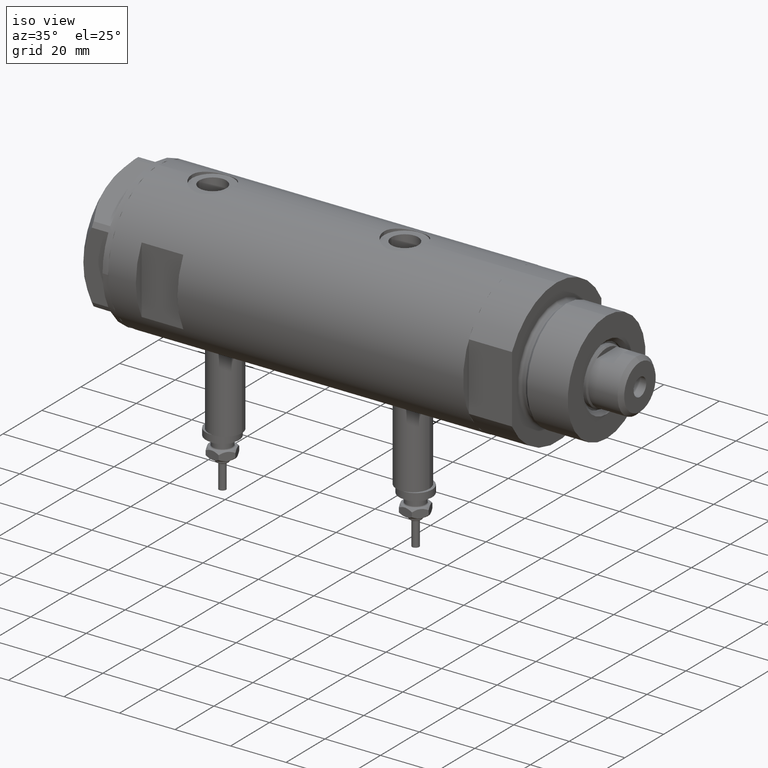
[diagram: clean part render]
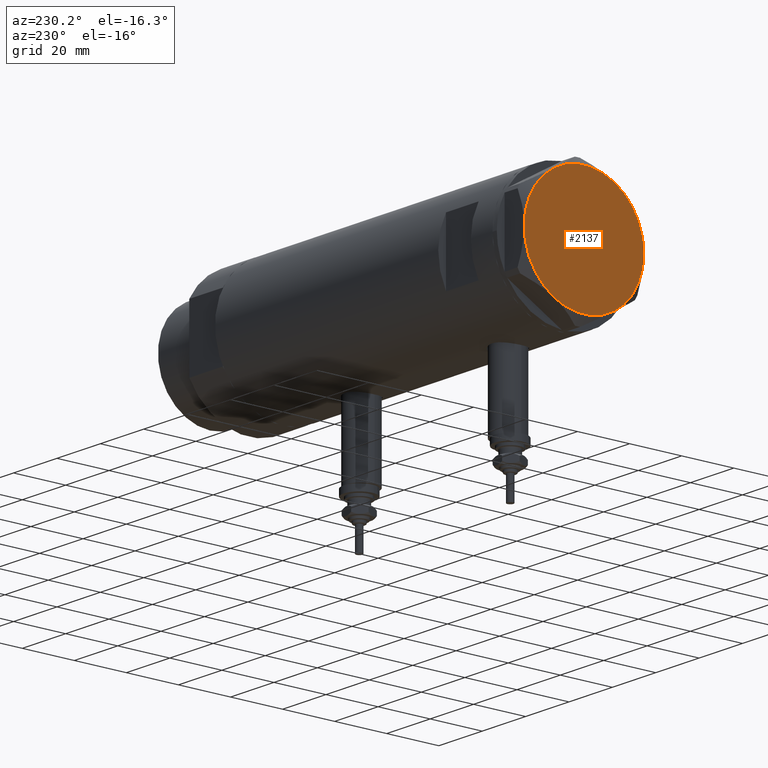
[diagram: tour spotlight — one face highlighted and labeled with its STEP entity id]
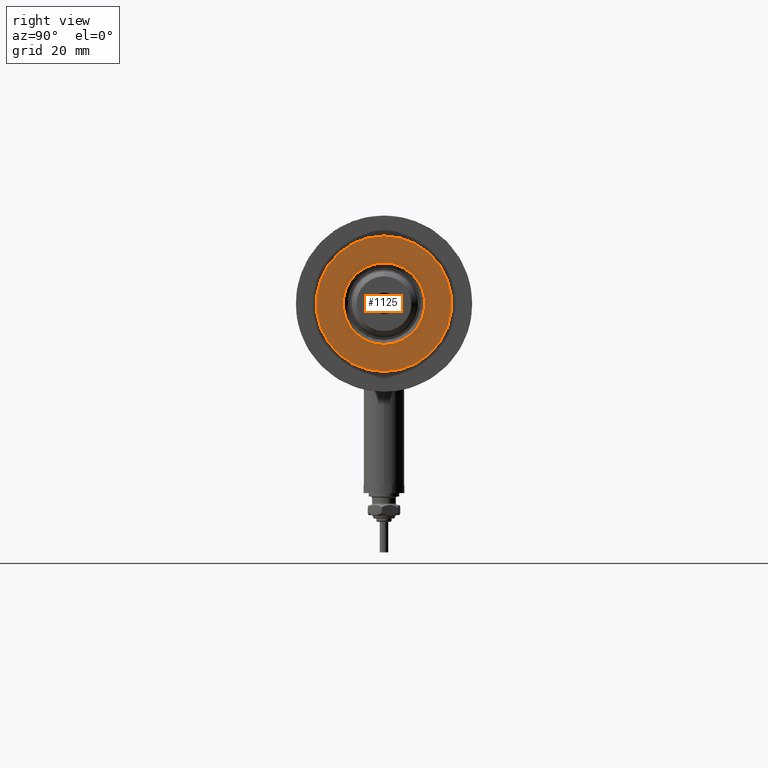
[diagram: tour spotlight — one face highlighted and labeled with its STEP entity id]
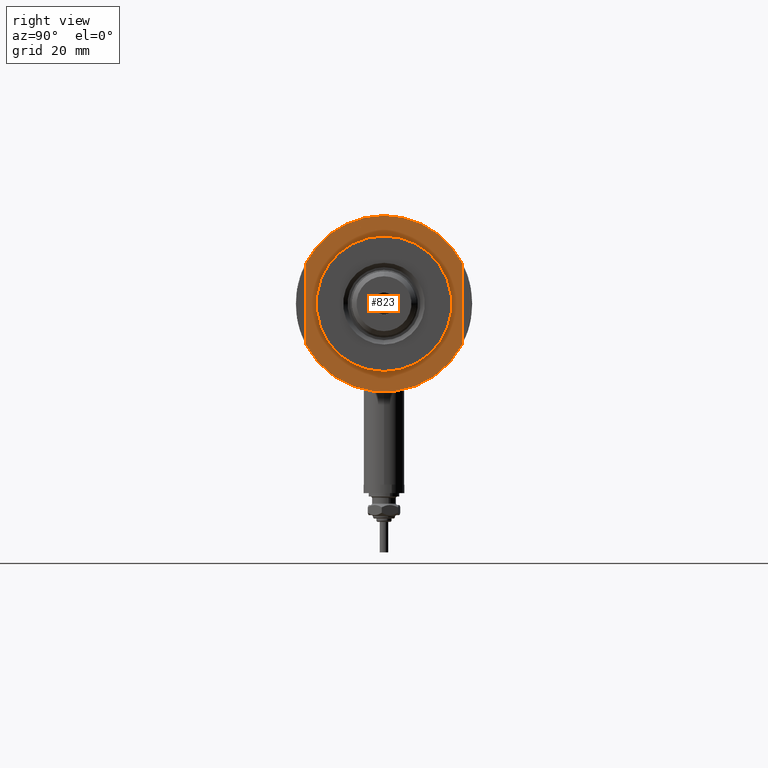
[diagram: tour spotlight — one face highlighted and labeled with its STEP entity id]
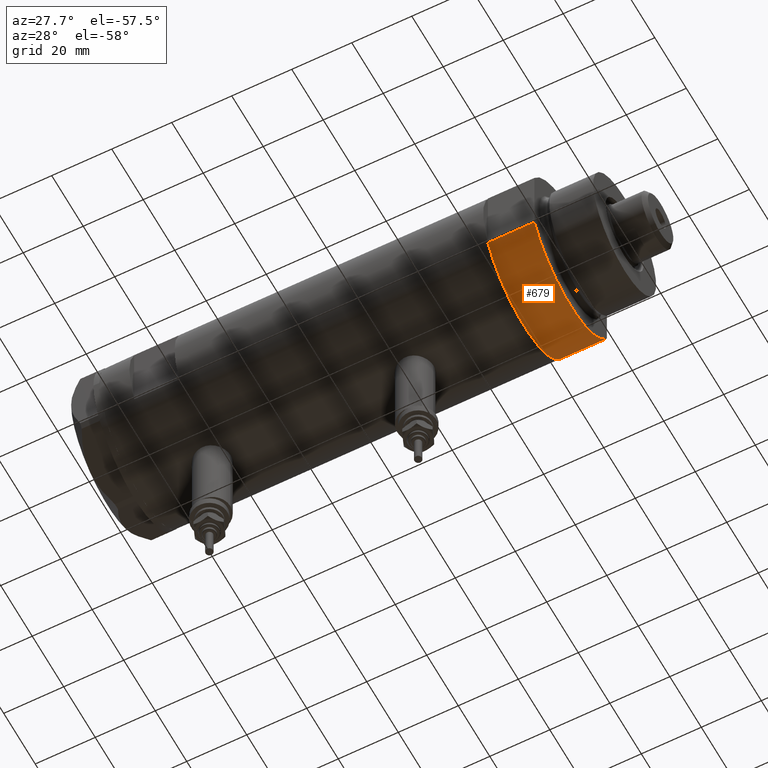
[diagram: tour spotlight — one face highlighted and labeled with its STEP entity id]
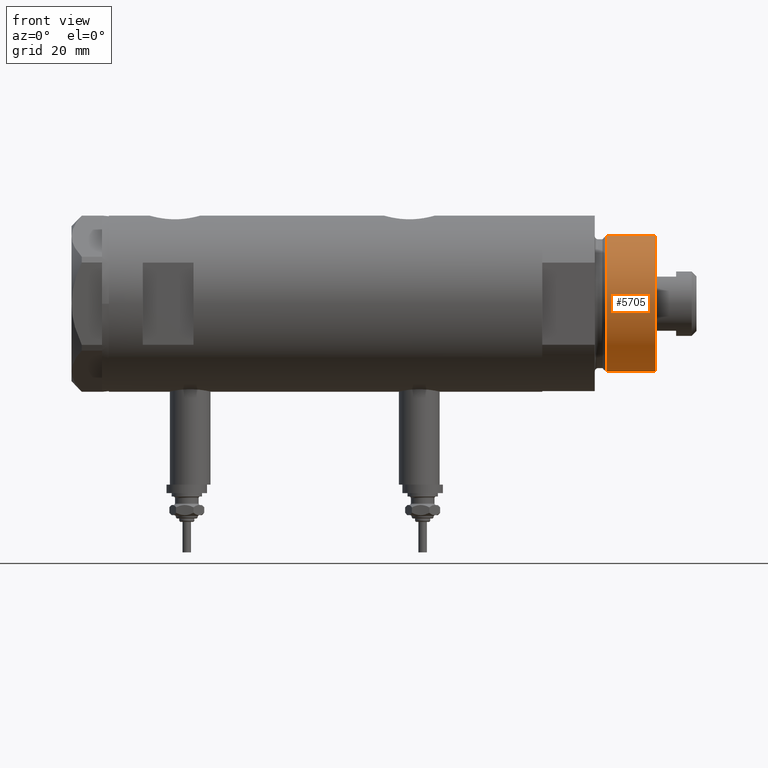
[diagram: tour spotlight — one face highlighted and labeled with its STEP entity id]
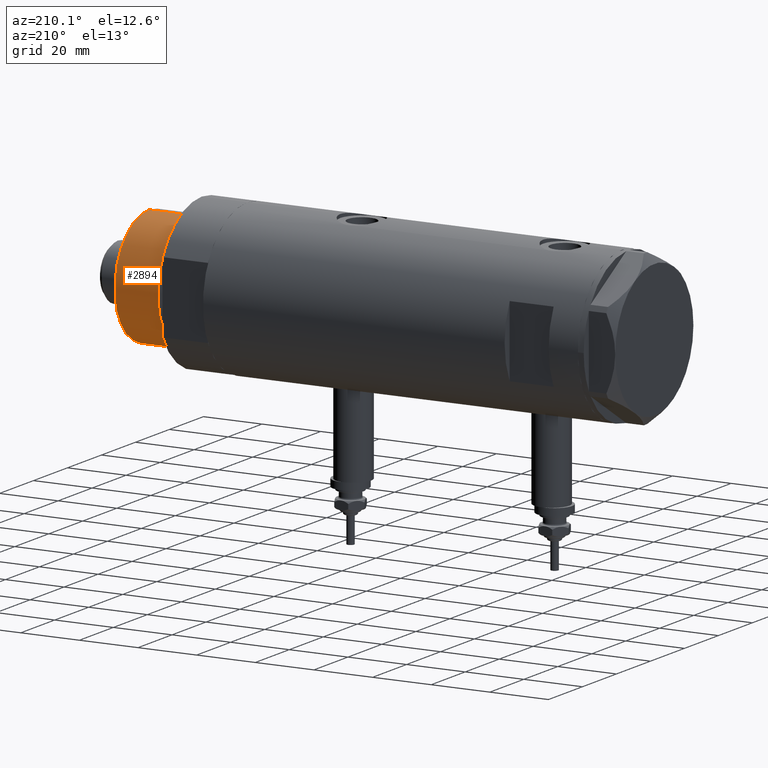
[diagram: tour spotlight — one face highlighted and labeled with its STEP entity id]
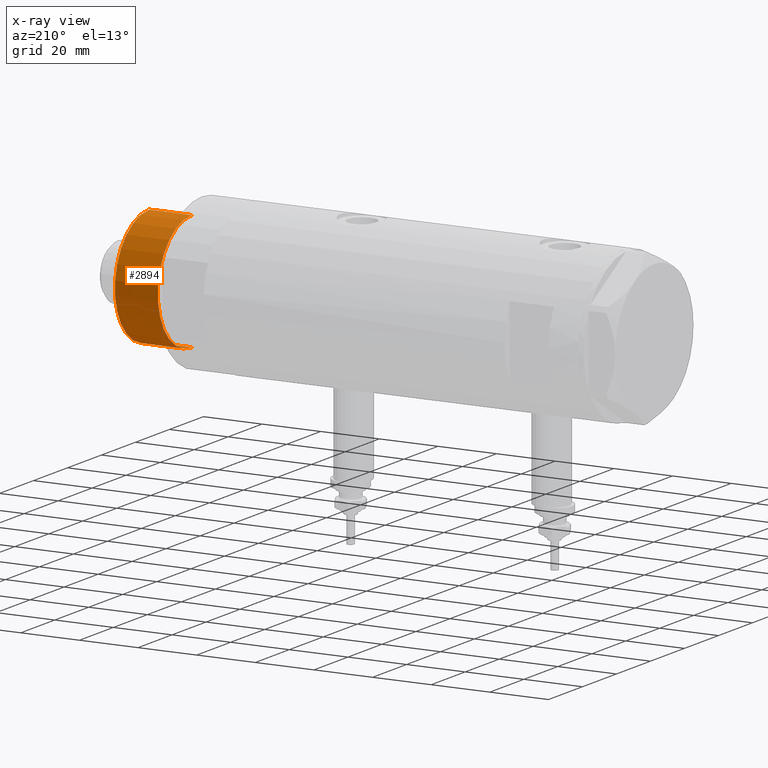
[diagram: x-ray of the same camera — body ghosted, this tour face saturated]
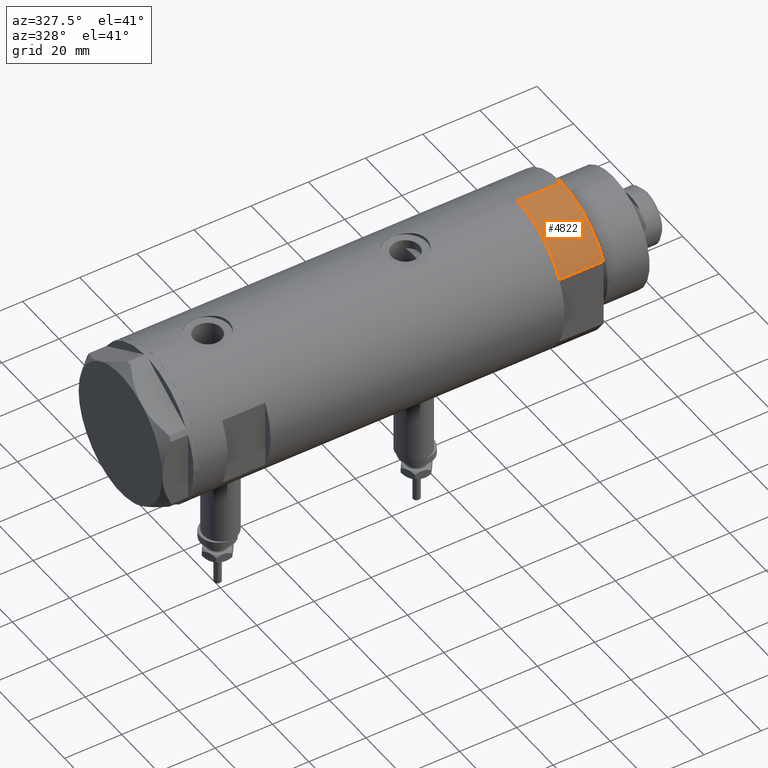
[diagram: tour spotlight — one face highlighted and labeled with its STEP entity id]
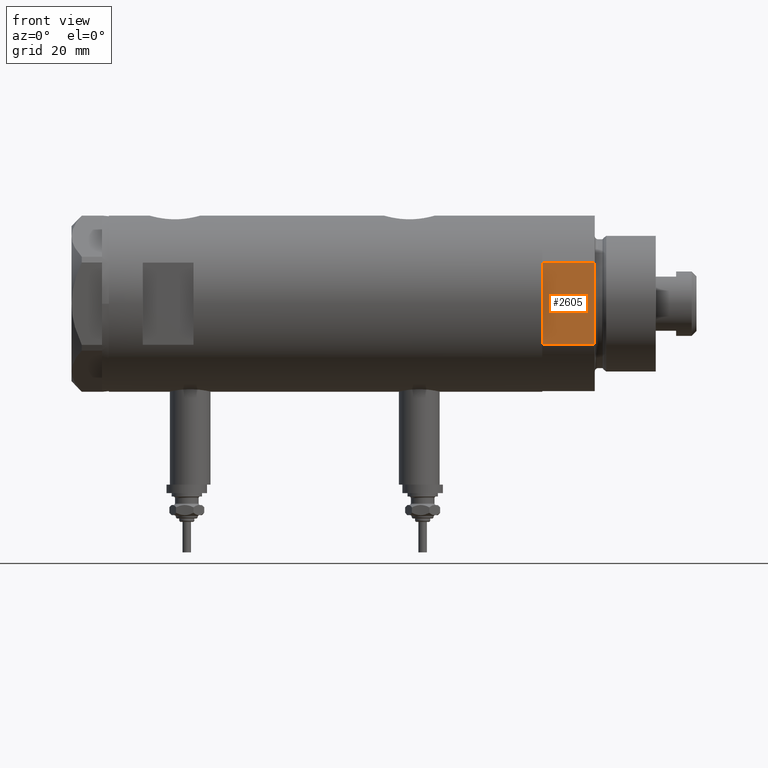
[diagram: tour spotlight — one face highlighted and labeled with its STEP entity id]
A machine part: a face-by-face anatomy tour. The part has 226 B-rep faces; the first image is the clean iso view, then the 8 largest visible faces are spotlighted one at a time (largest first), each with its STEP entity span.

Face 1 — auxiliary view, entity #2137. In plain terms, the highlighted planar face has unit normal (-1, -0, 0).
Definition (entity closure, byte-faithful):
#85 = VERTEX_POINT ( 'NONE', #5427 ) ;
#307 = CARTESIAN_POINT ( 'NONE',  ( -23.00000000000004619, -8.112498833180673323E-14, 9.000000000000000000 ) ) ;
#335 = VERTEX_POINT ( 'NONE', #2338 ) ;
#383 = DIRECTION ( 'NONE',  ( 0.000000000000000000, 0.000000000000000000, 1.000000000000000000 ) ) ;
#514 = AXIS2_PLACEMENT_3D ( 'NONE', #3091, #2160, #4688 ) ;
#776 = AXIS2_PLACEMENT_3D ( 'NONE', #1518, #4438, #2988 ) ;
#793 = CARTESIAN_POINT ( 'NONE',  ( 0.000000000000000000, 0.000000000000000000, 9.000000000000000000 ) ) ;
#925 = CIRCLE ( 'NONE', #1239, 23.00000000000004619 ) ;
#1014 = ORIENTED_EDGE ( 'NONE', *, *, #5451, .T. ) ;
#1029 = AXIS2_PLACEMENT_3D ( 'NONE', #793, #1725, #2741 ) ;
#1116 = VERTEX_POINT ( 'NONE', #2904 ) ;
#1143 = ORIENTED_EDGE ( 'NONE', *, *, #3598, .T. ) ;
#1196 = DIRECTION ( 'NONE',  ( 0.000000000000000000, 0.000000000000000000, 1.000000000000000000 ) ) ;
#1211 = DIRECTION ( 'NONE',  ( 1.000000000000000000, 0.000000000000000000, 0.000000000000000000 ) ) ;
#1239 = AXIS2_PLACEMENT_3D ( 'NONE', #2538, #1196, #5545 ) ;
#1319 = ORIENTED_EDGE ( 'NONE', *, *, #1861, .T. ) ;
#1368 = CARTESIAN_POINT ( 'NONE',  ( 0.000000000000000000, 0.000000000000000000, 9.000000000000000000 ) ) ;
#1518 = CARTESIAN_POINT ( 'NONE',  ( 0.000000000000000000, 0.000000000000000000, 9.000000000000000000 ) ) ;
#1539 = CIRCLE ( 'NONE', #514, 23.00000000000004619 ) ;
#1632 = CIRCLE ( 'NONE', #1029, 23.00000000000004619 ) ;
#1725 = DIRECTION ( 'NONE',  ( 0.000000000000000000, 0.000000000000000000, 1.000000000000000000 ) ) ;
#1861 = EDGE_CURVE ( 'NONE', #5751, #6019, #3748, .T. ) ;
#1990 = FACE_OUTER_BOUND ( 'NONE', #3487, .T. ) ;
#1998 = AXIS2_PLACEMENT_3D ( 'NONE', #3223, #3677, #1211 ) ;
#2137 = ADVANCED_FACE ( 'NONE', ( #1990 ), #5350, .T. ) ;
#2160 = DIRECTION ( 'NONE',  ( 0.000000000000000000, 0.000000000000000000, 1.000000000000000000 ) ) ;
#2220 = CARTESIAN_POINT ( 'NONE',  ( -11.49999999999990585, -19.91858428704219364, 9.000000000000000000 ) ) ;
#2338 = CARTESIAN_POINT ( 'NONE',  ( 22.99999999999995026, 2.373657066004705010E-13, 9.000000000000000000 ) ) ;
#2538 = CARTESIAN_POINT ( 'NONE',  ( 0.000000000000000000, 0.000000000000000000, 9.000000000000000000 ) ) ;
#2741 = DIRECTION ( 'NONE',  ( 1.000000000000000000, 0.000000000000000000, 0.000000000000000000 ) ) ;
#2774 = CARTESIAN_POINT ( 'NONE',  ( 0.000000000000000000, 0.000000000000000000, 9.000000000000000000 ) ) ;
#2836 = EDGE_CURVE ( 'NONE', #1116, #85, #6257, .T. ) ;
#2904 = CARTESIAN_POINT ( 'NONE',  ( 11.49999999999990408, 19.91858428704219364, 9.000000000000000000 ) ) ;
#2988 = DIRECTION ( 'NONE',  ( 1.000000000000000000, 0.000000000000000000, -0.000000000000000000 ) ) ;
#3045 = VERTEX_POINT ( 'NONE', #307 ) ;
#3091 = CARTESIAN_POINT ( 'NONE',  ( 0.000000000000000000, 0.000000000000000000, 9.000000000000000000 ) ) ;
#3103 = ORIENTED_EDGE ( 'NONE', *, *, #4237, .T. ) ;
#3223 = CARTESIAN_POINT ( 'NONE',  ( 0.000000000000000000, 0.000000000000000000, 9.000000000000000000 ) ) ;
#3487 = EDGE_LOOP ( 'NONE', ( #3103, #1014, #4005, #1143, #3893, #1319 ) ) ;
#3507 = AXIS2_PLACEMENT_3D ( 'NONE', #1368, #6293, #5329 ) ;
#3598 = EDGE_CURVE ( 'NONE', #85, #3045, #1539, .T. ) ;
#3677 = DIRECTION ( 'NONE',  ( 0.000000000000000000, 0.000000000000000000, 1.000000000000000000 ) ) ;
#3702 = CARTESIAN_POINT ( 'NONE',  ( 11.50000000000018296, -19.91858428704203732, 9.000000000000000000 ) ) ;
#3748 = CIRCLE ( 'NONE', #1998, 23.00000000000004619 ) ;
#3893 = ORIENTED_EDGE ( 'NONE', *, *, #4390, .T. ) ;
#4005 = ORIENTED_EDGE ( 'NONE', *, *, #2836, .T. ) ;
#4110 = CIRCLE ( 'NONE', #5424, 23.00000000000004619 ) ;
#4237 = EDGE_CURVE ( 'NONE', #6019, #335, #1632, .T. ) ;
#4390 = EDGE_CURVE ( 'NONE', #3045, #5751, #4110, .T. ) ;
#4438 = DIRECTION ( 'NONE',  ( 0.000000000000000000, 0.000000000000000000, 1.000000000000000000 ) ) ;
#4688 = DIRECTION ( 'NONE',  ( 1.000000000000000000, 0.000000000000000000, 0.000000000000000000 ) ) ;
#5275 = DIRECTION ( 'NONE',  ( 1.000000000000000000, 0.000000000000000000, 0.000000000000000000 ) ) ;
#5329 = DIRECTION ( 'NONE',  ( 1.000000000000000000, 0.000000000000000000, 0.000000000000000000 ) ) ;
#5350 = PLANE ( 'NONE',  #776 ) ;
#5424 = AXIS2_PLACEMENT_3D ( 'NONE', #2774, #383, #5275 ) ;
#5427 = CARTESIAN_POINT ( 'NONE',  ( -11.50000000000004441, 19.91858428704211548, 9.000000000000000000 ) ) ;
#5451 = EDGE_CURVE ( 'NONE', #335, #1116, #925, .T. ) ;
#5545 = DIRECTION ( 'NONE',  ( 1.000000000000000000, 0.000000000000000000, 0.000000000000000000 ) ) ;
#5751 = VERTEX_POINT ( 'NONE', #2220 ) ;
#6019 = VERTEX_POINT ( 'NONE', #3702 ) ;
#6257 = CIRCLE ( 'NONE', #3507, 23.00000000000004619 ) ;
#6293 = DIRECTION ( 'NONE',  ( 0.000000000000000000, 0.000000000000000000, 1.000000000000000000 ) ) ;

Face 2 — right view, entity #1125. In plain terms, the highlighted planar face has unit normal (1, 0, -0).
Definition (entity closure, byte-faithful):
#388 = DIRECTION ( 'NONE',  ( 1.000000000000000000, 0.000000000000000000, 0.000000000000000000 ) ) ;
#486 = ORIENTED_EDGE ( 'NONE', *, *, #4769, .T. ) ;
#488 = VERTEX_POINT ( 'NONE', #4971 ) ;
#593 = CARTESIAN_POINT ( 'NONE',  ( 0.000000000000000000, 0.000000000000000000, 33.50000000000000000 ) ) ;
#815 = AXIS2_PLACEMENT_3D ( 'NONE', #5325, #856, #5742 ) ;
#856 = DIRECTION ( 'NONE',  ( 0.000000000000000000, 0.000000000000000000, 1.000000000000000000 ) ) ;
#959 = DIRECTION ( 'NONE',  ( -0.000000000000000000, -0.000000000000000000, -1.000000000000000000 ) ) ;
#1076 = AXIS2_PLACEMENT_3D ( 'NONE', #3363, #5340, #5307 ) ;
#1125 = ADVANCED_FACE ( 'NONE', ( #1408, #3398 ), #1914, .T. ) ;
#1204 = EDGE_CURVE ( 'NONE', #3248, #488, #1484, .T. ) ;
#1378 = AXIS2_PLACEMENT_3D ( 'NONE', #1440, #959, #3333 ) ;
#1408 = FACE_BOUND ( 'NONE', #3915, .T. ) ;
#1425 = CIRCLE ( 'NONE', #815, 19.99999999999999645 ) ;
#1440 = CARTESIAN_POINT ( 'NONE',  ( 0.000000000000000000, 0.000000000000000000, 33.50000000000000000 ) ) ;
#1484 = CIRCLE ( 'NONE', #1378, 12.05000000000000426 ) ;
#1914 = PLANE ( 'NONE',  #1076 ) ;
#2052 = CIRCLE ( 'NONE', #2460, 12.05000000000000426 ) ;
#2460 = AXIS2_PLACEMENT_3D ( 'NONE', #6212, #3306, #388 ) ;
#2507 = DIRECTION ( 'NONE',  ( 1.000000000000000000, 0.000000000000000000, 0.000000000000000000 ) ) ;
#3248 = VERTEX_POINT ( 'NONE', #3376 ) ;
#3306 = DIRECTION ( 'NONE',  ( -0.000000000000000000, -0.000000000000000000, -1.000000000000000000 ) ) ;
#3333 = DIRECTION ( 'NONE',  ( 1.000000000000000000, 0.000000000000000000, 0.000000000000000000 ) ) ;
#3363 = CARTESIAN_POINT ( 'NONE',  ( 0.000000000000000000, 0.000000000000000000, 33.50000000000000000 ) ) ;
#3376 = CARTESIAN_POINT ( 'NONE',  ( 12.05000000000000426, 0.000000000000000000, 33.50000000000000000 ) ) ;
#3398 = FACE_OUTER_BOUND ( 'NONE', #5902, .T. ) ;
#3441 = DIRECTION ( 'NONE',  ( 0.000000000000000000, 0.000000000000000000, 1.000000000000000000 ) ) ;
#3570 = CARTESIAN_POINT ( 'NONE',  ( -19.99999999999999645, 0.000000000000000000, 33.50000000000000000 ) ) ;
#3915 = EDGE_LOOP ( 'NONE', ( #5546, #6095 ) ) ;
#3931 = VERTEX_POINT ( 'NONE', #3570 ) ;
#4769 = EDGE_CURVE ( 'NONE', #3931, #5992, #1425, .T. ) ;
#4971 = CARTESIAN_POINT ( 'NONE',  ( -12.05000000000000426, 1.475699392972560823E-15, 33.50000000000000000 ) ) ;
#5029 = AXIS2_PLACEMENT_3D ( 'NONE', #593, #3441, #2507 ) ;
#5307 = DIRECTION ( 'NONE',  ( 1.000000000000000000, 0.000000000000000000, -0.000000000000000000 ) ) ;
#5325 = CARTESIAN_POINT ( 'NONE',  ( 0.000000000000000000, 0.000000000000000000, 33.50000000000000000 ) ) ;
#5340 = DIRECTION ( 'NONE',  ( 0.000000000000000000, 0.000000000000000000, 1.000000000000000000 ) ) ;
#5429 = CIRCLE ( 'NONE', #5029, 19.99999999999999645 ) ;
#5546 = ORIENTED_EDGE ( 'NONE', *, *, #1204, .T. ) ;
#5613 = EDGE_CURVE ( 'NONE', #488, #3248, #2052, .T. ) ;
#5742 = DIRECTION ( 'NONE',  ( 1.000000000000000000, 0.000000000000000000, 0.000000000000000000 ) ) ;
#5902 = EDGE_LOOP ( 'NONE', ( #486, #6007 ) ) ;
#5992 = VERTEX_POINT ( 'NONE', #6123 ) ;
#6007 = ORIENTED_EDGE ( 'NONE', *, *, #6266, .T. ) ;
#6095 = ORIENTED_EDGE ( 'NONE', *, *, #5613, .T. ) ;
#6123 = CARTESIAN_POINT ( 'NONE',  ( 19.99999999999999645, 2.449293598294706119E-15, 33.50000000000000000 ) ) ;
#6212 = CARTESIAN_POINT ( 'NONE',  ( 0.000000000000000000, 0.000000000000000000, 33.50000000000000000 ) ) ;
#6266 = EDGE_CURVE ( 'NONE', #5992, #3931, #5429, .T. ) ;

Face 3 — right view, entity #823. In plain terms, the highlighted planar face has unit normal (1, 0, -0).
Definition (entity closure, byte-faithful):
#74 = VERTEX_POINT ( 'NONE', #2419 ) ;
#98 = DIRECTION ( 'NONE',  ( -1.000000000000000000, -0.000000000000000000, -0.000000000000000000 ) ) ;
#135 = DIRECTION ( 'NONE',  ( 0.000000000000000000, 0.000000000000000000, 1.000000000000000000 ) ) ;
#209 = CARTESIAN_POINT ( 'NONE',  ( 0.000000000000000000, 0.000000000000000000, 15.50000000000000000 ) ) ;
#556 = ORIENTED_EDGE ( 'NONE', *, *, #5918, .F. ) ;
#629 = AXIS2_PLACEMENT_3D ( 'NONE', #209, #3242, #2339 ) ;
#631 = VERTEX_POINT ( 'NONE', #4682 ) ;
#823 = ADVANCED_FACE ( 'NONE', ( #1792, #2812 ), #2336, .T. ) ;
#847 = EDGE_LOOP ( 'NONE', ( #4532, #4432 ) ) ;
#946 = DIRECTION ( 'NONE',  ( 0.000000000000000000, 0.000000000000000000, 1.000000000000000000 ) ) ;
#1071 = ORIENTED_EDGE ( 'NONE', *, *, #3329, .T. ) ;
#1089 = CARTESIAN_POINT ( 'NONE',  ( 0.000000000000000000, 0.000000000000000000, 15.50000000000000000 ) ) ;
#1094 = CARTESIAN_POINT ( 'NONE',  ( -12.12435565298215145, -22.99999999999999645, 15.50000000000000000 ) ) ;
#1098 = VERTEX_POINT ( 'NONE', #3427 ) ;
#1312 = EDGE_CURVE ( 'NONE', #631, #1098, #4968, .T. ) ;
#1327 = CIRCLE ( 'NONE', #1636, 26.00000000000000355 ) ;
#1344 = VECTOR ( 'NONE', #4479, 1000.000000000000000 ) ;
#1636 = AXIS2_PLACEMENT_3D ( 'NONE', #2350, #946, #5292 ) ;
#1746 = CIRCLE ( 'NONE', #629, 26.00000000000000355 ) ;
#1785 = EDGE_CURVE ( 'NONE', #2131, #4190, #5363, .T. ) ;
#1792 = FACE_BOUND ( 'NONE', #847, .T. ) ;
#1996 = ORIENTED_EDGE ( 'NONE', *, *, #3616, .T. ) ;
#2059 = CARTESIAN_POINT ( 'NONE',  ( -20.00000000000000000, 2.449293598294706513E-15, 15.50000000000000000 ) ) ;
#2131 = VERTEX_POINT ( 'NONE', #2059 ) ;
#2164 = ORIENTED_EDGE ( 'NONE', *, *, #2532, .T. ) ;
#2203 = VECTOR ( 'NONE', #98, 1000.000000000000000 ) ;
#2273 = CIRCLE ( 'NONE', #4019, 26.00000000000000355 ) ;
#2305 = AXIS2_PLACEMENT_3D ( 'NONE', #5978, #6009, #4580 ) ;
#2336 = PLANE ( 'NONE',  #4467 ) ;
#2339 = DIRECTION ( 'NONE',  ( 1.000000000000000000, 0.000000000000000000, 0.000000000000000000 ) ) ;
#2345 = CIRCLE ( 'NONE', #6244, 20.00000000000000000 ) ;
#2350 = CARTESIAN_POINT ( 'NONE',  ( 0.000000000000000000, 0.000000000000000000, 15.50000000000000000 ) ) ;
#2378 = ORIENTED_EDGE ( 'NONE', *, *, #1312, .F. ) ;
#2419 = CARTESIAN_POINT ( 'NONE',  ( 12.12435565298214790, 23.00000000000000355, 15.50000000000000000 ) ) ;
#2532 = EDGE_CURVE ( 'NONE', #2690, #4487, #2273, .T. ) ;
#2690 = VERTEX_POINT ( 'NONE', #6169 ) ;
#2805 = CARTESIAN_POINT ( 'NONE',  ( 0.000000000000000000, 0.000000000000000000, 15.50000000000000000 ) ) ;
#2812 = FACE_OUTER_BOUND ( 'NONE', #4904, .T. ) ;
#3242 = DIRECTION ( 'NONE',  ( 0.000000000000000000, 0.000000000000000000, 1.000000000000000000 ) ) ;
#3329 = EDGE_CURVE ( 'NONE', #631, #74, #1327, .T. ) ;
#3427 = CARTESIAN_POINT ( 'NONE',  ( -12.12435565298215323, -22.99999999999999645, 15.50000000000000000 ) ) ;
#3552 = CARTESIAN_POINT ( 'NONE',  ( -12.12435565298215145, 23.00000000000000355, 15.50000000000000000 ) ) ;
#3616 = EDGE_CURVE ( 'NONE', #4487, #1098, #1746, .T. ) ;
#3755 = DIRECTION ( 'NONE',  ( 0.000000000000000000, 0.000000000000000000, 1.000000000000000000 ) ) ;
#3814 = CARTESIAN_POINT ( 'NONE',  ( 0.000000000000000000, 0.000000000000000000, 15.50000000000000000 ) ) ;
#3846 = DIRECTION ( 'NONE',  ( 1.000000000000000000, 0.000000000000000000, -0.000000000000000000 ) ) ;
#3974 = DIRECTION ( 'NONE',  ( 1.000000000000000000, 0.000000000000000000, 0.000000000000000000 ) ) ;
#4019 = AXIS2_PLACEMENT_3D ( 'NONE', #1089, #135, #3974 ) ;
#4106 = CARTESIAN_POINT ( 'NONE',  ( 20.00000000000000000, 0.000000000000000000, 15.50000000000000000 ) ) ;
#4190 = VERTEX_POINT ( 'NONE', #4106 ) ;
#4329 = EDGE_CURVE ( 'NONE', #4190, #2131, #2345, .T. ) ;
#4432 = ORIENTED_EDGE ( 'NONE', *, *, #1785, .T. ) ;
#4467 = AXIS2_PLACEMENT_3D ( 'NONE', #3814, #3755, #3846 ) ;
#4479 = DIRECTION ( 'NONE',  ( 1.000000000000000000, 0.000000000000000000, 0.000000000000000000 ) ) ;
#4487 = VERTEX_POINT ( 'NONE', #5393 ) ;
#4532 = ORIENTED_EDGE ( 'NONE', *, *, #4329, .T. ) ;
#4580 = DIRECTION ( 'NONE',  ( 1.000000000000000000, 0.000000000000000000, 0.000000000000000000 ) ) ;
#4682 = CARTESIAN_POINT ( 'NONE',  ( 12.12435565298215323, -22.99999999999999645, 15.50000000000000000 ) ) ;
#4738 = DIRECTION ( 'NONE',  ( 1.000000000000000000, 0.000000000000000000, 0.000000000000000000 ) ) ;
#4904 = EDGE_LOOP ( 'NONE', ( #2378, #1071, #556, #2164, #1996 ) ) ;
#4968 = LINE ( 'NONE', #1094, #2203 ) ;
#5292 = DIRECTION ( 'NONE',  ( 1.000000000000000000, 0.000000000000000000, 0.000000000000000000 ) ) ;
#5363 = CIRCLE ( 'NONE', #2305, 20.00000000000000000 ) ;
#5393 = CARTESIAN_POINT ( 'NONE',  ( -26.00000000000000355, 0.000000000000000000, 15.50000000000000000 ) ) ;
#5710 = DIRECTION ( 'NONE',  ( -0.000000000000000000, -0.000000000000000000, -1.000000000000000000 ) ) ;
#5918 = EDGE_CURVE ( 'NONE', #2690, #74, #6321, .T. ) ;
#5978 = CARTESIAN_POINT ( 'NONE',  ( 0.000000000000000000, 0.000000000000000000, 15.50000000000000000 ) ) ;
#6009 = DIRECTION ( 'NONE',  ( -0.000000000000000000, -0.000000000000000000, -1.000000000000000000 ) ) ;
#6169 = CARTESIAN_POINT ( 'NONE',  ( -12.12435565298214613, 23.00000000000000355, 15.50000000000000000 ) ) ;
#6244 = AXIS2_PLACEMENT_3D ( 'NONE', #2805, #5710, #4738 ) ;
#6321 = LINE ( 'NONE', #3552, #1344 ) ;

Face 4 — auxiliary view, entity #679. In plain terms, the highlighted cylindrical surface (partial cylindrical patch) has radius 26 mm, axis along (-1, -0, 0).
Definition (entity closure, byte-faithful):
#35 = CARTESIAN_POINT ( 'NONE',  ( 0.000000000000000000, 0.000000000000000000, 0.000000000000000000 ) ) ;
#69 = EDGE_CURVE ( 'NONE', #6188, #74, #5842, .T. ) ;
#74 = VERTEX_POINT ( 'NONE', #2419 ) ;
#392 = DIRECTION ( 'NONE',  ( -0.000000000000000000, -0.000000000000000000, 1.000000000000000000 ) ) ;
#511 = DIRECTION ( 'NONE',  ( 0.000000000000000000, 0.000000000000000000, 1.000000000000000000 ) ) ;
#596 = ORIENTED_EDGE ( 'NONE', *, *, #1106, .T. ) ;
#631 = VERTEX_POINT ( 'NONE', #4682 ) ;
#679 = ADVANCED_FACE ( 'NONE', ( #2718 ), #2185, .T. ) ;
#946 = DIRECTION ( 'NONE',  ( 0.000000000000000000, 0.000000000000000000, 1.000000000000000000 ) ) ;
#1106 = EDGE_CURVE ( 'NONE', #4886, #6188, #3839, .T. ) ;
#1327 = CIRCLE ( 'NONE', #1636, 26.00000000000000355 ) ;
#1636 = AXIS2_PLACEMENT_3D ( 'NONE', #2350, #946, #5292 ) ;
#1946 = DIRECTION ( 'NONE',  ( 1.000000000000000000, 0.000000000000000000, 0.000000000000000000 ) ) ;
#2086 = DIRECTION ( 'NONE',  ( -0.000000000000000000, -0.000000000000000000, -1.000000000000000000 ) ) ;
#2185 = CYLINDRICAL_SURFACE ( 'NONE', #5779, 26.00000000000000355 ) ;
#2350 = CARTESIAN_POINT ( 'NONE',  ( 0.000000000000000000, 0.000000000000000000, 15.50000000000000000 ) ) ;
#2419 = CARTESIAN_POINT ( 'NONE',  ( 12.12435565298214790, 23.00000000000000355, 15.50000000000000000 ) ) ;
#2718 = FACE_OUTER_BOUND ( 'NONE', #3526, .T. ) ;
#2730 = CARTESIAN_POINT ( 'NONE',  ( 12.12435565298214080, 23.00000000000000355, 0.000000000000000000 ) ) ;
#2915 = ORIENTED_EDGE ( 'NONE', *, *, #69, .T. ) ;
#3022 = ORIENTED_EDGE ( 'NONE', *, *, #3945, .F. ) ;
#3178 = VECTOR ( 'NONE', #392, 1000.000000000000000 ) ;
#3329 = EDGE_CURVE ( 'NONE', #631, #74, #1327, .T. ) ;
#3353 = CARTESIAN_POINT ( 'NONE',  ( 12.12435565298215323, 23.00000000000000355, 0.000000000000000000 ) ) ;
#3526 = EDGE_LOOP ( 'NONE', ( #5805, #3022, #596, #2915 ) ) ;
#3821 = LINE ( 'NONE', #6153, #3178 ) ;
#3839 = CIRCLE ( 'NONE', #5358, 26.00000000000000355 ) ;
#3945 = EDGE_CURVE ( 'NONE', #4886, #631, #3821, .T. ) ;
#3967 = DIRECTION ( 'NONE',  ( -0.000000000000000000, -0.000000000000000000, 1.000000000000000000 ) ) ;
#4079 = DIRECTION ( 'NONE',  ( -1.000000000000000000, 0.000000000000000000, 0.000000000000000000 ) ) ;
#4261 = VECTOR ( 'NONE', #3967, 1000.000000000000000 ) ;
#4682 = CARTESIAN_POINT ( 'NONE',  ( 12.12435565298215323, -22.99999999999999645, 15.50000000000000000 ) ) ;
#4886 = VERTEX_POINT ( 'NONE', #5770 ) ;
#5062 = CARTESIAN_POINT ( 'NONE',  ( 0.000000000000000000, 0.000000000000000000, 15.50000000000000000 ) ) ;
#5292 = DIRECTION ( 'NONE',  ( 1.000000000000000000, 0.000000000000000000, 0.000000000000000000 ) ) ;
#5358 = AXIS2_PLACEMENT_3D ( 'NONE', #35, #511, #1946 ) ;
#5770 = CARTESIAN_POINT ( 'NONE',  ( 12.12435565298215323, -22.99999999999999645, 0.000000000000000000 ) ) ;
#5779 = AXIS2_PLACEMENT_3D ( 'NONE', #5062, #2086, #4079 ) ;
#5805 = ORIENTED_EDGE ( 'NONE', *, *, #3329, .F. ) ;
#5842 = LINE ( 'NONE', #3353, #4261 ) ;
#6153 = CARTESIAN_POINT ( 'NONE',  ( 12.12435565298215323, -22.99999999999999645, 0.000000000000000000 ) ) ;
#6188 = VERTEX_POINT ( 'NONE', #2730 ) ;

Face 5 — front view, entity #5705. In plain terms, the highlighted cylindrical surface (partial cylindrical patch) has radius 20 mm, axis along (-1, -0, 0).
Definition (entity closure, byte-faithful):
#324 = VECTOR ( 'NONE', #4157, 1000.000000000000000 ) ;
#326 = ORIENTED_EDGE ( 'NONE', *, *, #4572, .T. ) ;
#478 = CARTESIAN_POINT ( 'NONE',  ( 19.99999999999999645, 2.449293598294706119E-15, 18.87384048104053846 ) ) ;
#630 = FACE_OUTER_BOUND ( 'NONE', #2612, .T. ) ;
#700 = ORIENTED_EDGE ( 'NONE', *, *, #4769, .F. ) ;
#815 = AXIS2_PLACEMENT_3D ( 'NONE', #5325, #856, #5742 ) ;
#837 = DIRECTION ( 'NONE',  ( -0.000000000000000000, -0.000000000000000000, -1.000000000000000000 ) ) ;
#856 = DIRECTION ( 'NONE',  ( 0.000000000000000000, 0.000000000000000000, 1.000000000000000000 ) ) ;
#1425 = CIRCLE ( 'NONE', #815, 19.99999999999999645 ) ;
#1638 = VERTEX_POINT ( 'NONE', #478 ) ;
#1714 = CARTESIAN_POINT ( 'NONE',  ( 19.99999999999999645, 2.449293598294706119E-15, 33.50000000000000000 ) ) ;
#2076 = DIRECTION ( 'NONE',  ( 1.000000000000000000, 0.000000000000000000, 0.000000000000000000 ) ) ;
#2108 = CARTESIAN_POINT ( 'NONE',  ( 0.000000000000000000, 0.000000000000000000, 18.87384048104053846 ) ) ;
#2149 = AXIS2_PLACEMENT_3D ( 'NONE', #2108, #5462, #2076 ) ;
#2309 = CARTESIAN_POINT ( 'NONE',  ( -19.99999999999999645, 0.000000000000000000, 33.50000000000000000 ) ) ;
#2564 = VECTOR ( 'NONE', #837, 1000.000000000000000 ) ;
#2612 = EDGE_LOOP ( 'NONE', ( #6265, #700, #6260, #326 ) ) ;
#2970 = AXIS2_PLACEMENT_3D ( 'NONE', #6092, #5579, #5045 ) ;
#3570 = CARTESIAN_POINT ( 'NONE',  ( -19.99999999999999645, 0.000000000000000000, 33.50000000000000000 ) ) ;
#3578 = CYLINDRICAL_SURFACE ( 'NONE', #2970, 19.99999999999999645 ) ;
#3682 = CIRCLE ( 'NONE', #2149, 19.99999999999999645 ) ;
#3931 = VERTEX_POINT ( 'NONE', #3570 ) ;
#4062 = LINE ( 'NONE', #1714, #324 ) ;
#4146 = VERTEX_POINT ( 'NONE', #5983 ) ;
#4157 = DIRECTION ( 'NONE',  ( -0.000000000000000000, -0.000000000000000000, -1.000000000000000000 ) ) ;
#4572 = EDGE_CURVE ( 'NONE', #4146, #1638, #3682, .T. ) ;
#4769 = EDGE_CURVE ( 'NONE', #3931, #5992, #1425, .T. ) ;
#5045 = DIRECTION ( 'NONE',  ( -1.000000000000000000, 0.000000000000000000, 0.000000000000000000 ) ) ;
#5325 = CARTESIAN_POINT ( 'NONE',  ( 0.000000000000000000, 0.000000000000000000, 33.50000000000000000 ) ) ;
#5462 = DIRECTION ( 'NONE',  ( -0.000000000000000000, -0.000000000000000000, 1.000000000000000000 ) ) ;
#5557 = EDGE_CURVE ( 'NONE', #3931, #4146, #6242, .T. ) ;
#5579 = DIRECTION ( 'NONE',  ( -0.000000000000000000, -0.000000000000000000, -1.000000000000000000 ) ) ;
#5705 = ADVANCED_FACE ( 'NONE', ( #630 ), #3578, .T. ) ;
#5742 = DIRECTION ( 'NONE',  ( 1.000000000000000000, 0.000000000000000000, 0.000000000000000000 ) ) ;
#5983 = CARTESIAN_POINT ( 'NONE',  ( -19.99999999999999645, 0.000000000000000000, 18.87384048104053846 ) ) ;
#5992 = VERTEX_POINT ( 'NONE', #6123 ) ;
#6013 = EDGE_CURVE ( 'NONE', #5992, #1638, #4062, .T. ) ;
#6092 = CARTESIAN_POINT ( 'NONE',  ( 0.000000000000000000, 0.000000000000000000, 33.50000000000000000 ) ) ;
#6123 = CARTESIAN_POINT ( 'NONE',  ( 19.99999999999999645, 2.449293598294706119E-15, 33.50000000000000000 ) ) ;
#6242 = LINE ( 'NONE', #2309, #2564 ) ;
#6260 = ORIENTED_EDGE ( 'NONE', *, *, #5557, .T. ) ;
#6265 = ORIENTED_EDGE ( 'NONE', *, *, #6013, .F. ) ;

Face 6 — auxiliary view, entity #2894. An x-ray twin of the same camera follows (body ghosted, this face saturated) — the face is partly hidden behind the body. In plain terms, the highlighted cylindrical surface (partial cylindrical patch) has radius 20 mm, axis along (-1, -0, 0).
Definition (entity closure, byte-faithful):
#91 = ORIENTED_EDGE ( 'NONE', *, *, #2048, .T. ) ;
#324 = VECTOR ( 'NONE', #4157, 1000.000000000000000 ) ;
#372 = CIRCLE ( 'NONE', #1700, 19.99999999999999645 ) ;
#439 = DIRECTION ( 'NONE',  ( -1.000000000000000000, 0.000000000000000000, 0.000000000000000000 ) ) ;
#478 = CARTESIAN_POINT ( 'NONE',  ( 19.99999999999999645, 2.449293598294706119E-15, 18.87384048104053846 ) ) ;
#593 = CARTESIAN_POINT ( 'NONE',  ( 0.000000000000000000, 0.000000000000000000, 33.50000000000000000 ) ) ;
#837 = DIRECTION ( 'NONE',  ( -0.000000000000000000, -0.000000000000000000, -1.000000000000000000 ) ) ;
#945 = CARTESIAN_POINT ( 'NONE',  ( 0.000000000000000000, 0.000000000000000000, 18.87384048104053846 ) ) ;
#956 = ORIENTED_EDGE ( 'NONE', *, *, #6013, .T. ) ;
#1297 = DIRECTION ( 'NONE',  ( 1.000000000000000000, 0.000000000000000000, 0.000000000000000000 ) ) ;
#1638 = VERTEX_POINT ( 'NONE', #478 ) ;
#1682 = EDGE_LOOP ( 'NONE', ( #3778, #956, #91, #1952 ) ) ;
#1700 = AXIS2_PLACEMENT_3D ( 'NONE', #945, #3769, #1297 ) ;
#1714 = CARTESIAN_POINT ( 'NONE',  ( 19.99999999999999645, 2.449293598294706119E-15, 33.50000000000000000 ) ) ;
#1904 = CYLINDRICAL_SURFACE ( 'NONE', #3140, 19.99999999999999645 ) ;
#1952 = ORIENTED_EDGE ( 'NONE', *, *, #5557, .F. ) ;
#2048 = EDGE_CURVE ( 'NONE', #1638, #4146, #372, .T. ) ;
#2309 = CARTESIAN_POINT ( 'NONE',  ( -19.99999999999999645, 0.000000000000000000, 33.50000000000000000 ) ) ;
#2507 = DIRECTION ( 'NONE',  ( 1.000000000000000000, 0.000000000000000000, 0.000000000000000000 ) ) ;
#2564 = VECTOR ( 'NONE', #837, 1000.000000000000000 ) ;
#2894 = ADVANCED_FACE ( 'NONE', ( #4828 ), #1904, .T. ) ;
#3140 = AXIS2_PLACEMENT_3D ( 'NONE', #5359, #4319, #439 ) ;
#3441 = DIRECTION ( 'NONE',  ( 0.000000000000000000, 0.000000000000000000, 1.000000000000000000 ) ) ;
#3570 = CARTESIAN_POINT ( 'NONE',  ( -19.99999999999999645, 0.000000000000000000, 33.50000000000000000 ) ) ;
#3769 = DIRECTION ( 'NONE',  ( -0.000000000000000000, -0.000000000000000000, 1.000000000000000000 ) ) ;
#3778 = ORIENTED_EDGE ( 'NONE', *, *, #6266, .F. ) ;
#3931 = VERTEX_POINT ( 'NONE', #3570 ) ;
#4062 = LINE ( 'NONE', #1714, #324 ) ;
#4146 = VERTEX_POINT ( 'NONE', #5983 ) ;
#4157 = DIRECTION ( 'NONE',  ( -0.000000000000000000, -0.000000000000000000, -1.000000000000000000 ) ) ;
#4319 = DIRECTION ( 'NONE',  ( -0.000000000000000000, -0.000000000000000000, -1.000000000000000000 ) ) ;
#4828 = FACE_OUTER_BOUND ( 'NONE', #1682, .T. ) ;
#5029 = AXIS2_PLACEMENT_3D ( 'NONE', #593, #3441, #2507 ) ;
#5359 = CARTESIAN_POINT ( 'NONE',  ( 0.000000000000000000, 0.000000000000000000, 33.50000000000000000 ) ) ;
#5429 = CIRCLE ( 'NONE', #5029, 19.99999999999999645 ) ;
#5557 = EDGE_CURVE ( 'NONE', #3931, #4146, #6242, .T. ) ;
#5983 = CARTESIAN_POINT ( 'NONE',  ( -19.99999999999999645, 0.000000000000000000, 18.87384048104053846 ) ) ;
#5992 = VERTEX_POINT ( 'NONE', #6123 ) ;
#6013 = EDGE_CURVE ( 'NONE', #5992, #1638, #4062, .T. ) ;
#6123 = CARTESIAN_POINT ( 'NONE',  ( 19.99999999999999645, 2.449293598294706119E-15, 33.50000000000000000 ) ) ;
#6242 = LINE ( 'NONE', #2309, #2564 ) ;
#6266 = EDGE_CURVE ( 'NONE', #5992, #3931, #5429, .T. ) ;

Face 7 — auxiliary view, entity #4822. In plain terms, the highlighted cylindrical surface (partial cylindrical patch) has radius 26 mm, axis along (-1, -0, 0).
Definition (entity closure, byte-faithful):
#209 = CARTESIAN_POINT ( 'NONE',  ( 0.000000000000000000, 0.000000000000000000, 15.50000000000000000 ) ) ;
#384 = DIRECTION ( 'NONE',  ( -0.000000000000000000, -0.000000000000000000, 1.000000000000000000 ) ) ;
#409 = AXIS2_PLACEMENT_3D ( 'NONE', #3772, #2893, #1901 ) ;
#629 = AXIS2_PLACEMENT_3D ( 'NONE', #209, #3242, #2339 ) ;
#1084 = VECTOR ( 'NONE', #384, 1000.000000000000000 ) ;
#1098 = VERTEX_POINT ( 'NONE', #3427 ) ;
#1314 = CARTESIAN_POINT ( 'NONE',  ( -26.00000000000000355, 0.000000000000000000, 15.50000000000000000 ) ) ;
#1510 = EDGE_CURVE ( 'NONE', #5046, #1098, #5713, .T. ) ;
#1746 = CIRCLE ( 'NONE', #629, 26.00000000000000355 ) ;
#1875 = DIRECTION ( 'NONE',  ( 0.000000000000000000, 0.000000000000000000, 1.000000000000000000 ) ) ;
#1901 = DIRECTION ( 'NONE',  ( -1.000000000000000000, 0.000000000000000000, 0.000000000000000000 ) ) ;
#2066 = CARTESIAN_POINT ( 'NONE',  ( -12.12435565298215501, -22.99999999999999645, 0.000000000000000000 ) ) ;
#2075 = ORIENTED_EDGE ( 'NONE', *, *, #2835, .T. ) ;
#2298 = CARTESIAN_POINT ( 'NONE',  ( 0.000000000000000000, 0.000000000000000000, 0.000000000000000000 ) ) ;
#2339 = DIRECTION ( 'NONE',  ( 1.000000000000000000, 0.000000000000000000, 0.000000000000000000 ) ) ;
#2426 = DIRECTION ( 'NONE',  ( -0.000000000000000000, -0.000000000000000000, -1.000000000000000000 ) ) ;
#2526 = EDGE_CURVE ( 'NONE', #4487, #5015, #3907, .T. ) ;
#2680 = AXIS2_PLACEMENT_3D ( 'NONE', #2298, #1875, #4794 ) ;
#2835 = EDGE_CURVE ( 'NONE', #5015, #5046, #5436, .T. ) ;
#2893 = DIRECTION ( 'NONE',  ( -0.000000000000000000, -0.000000000000000000, -1.000000000000000000 ) ) ;
#2923 = CARTESIAN_POINT ( 'NONE',  ( -26.00000000000000355, 0.000000000000000000, 0.000000000000000000 ) ) ;
#3242 = DIRECTION ( 'NONE',  ( 0.000000000000000000, 0.000000000000000000, 1.000000000000000000 ) ) ;
#3427 = CARTESIAN_POINT ( 'NONE',  ( -12.12435565298215323, -22.99999999999999645, 15.50000000000000000 ) ) ;
#3616 = EDGE_CURVE ( 'NONE', #4487, #1098, #1746, .T. ) ;
#3712 = VECTOR ( 'NONE', #2426, 1000.000000000000000 ) ;
#3772 = CARTESIAN_POINT ( 'NONE',  ( 0.000000000000000000, 0.000000000000000000, 15.50000000000000000 ) ) ;
#3907 = LINE ( 'NONE', #1314, #3712 ) ;
#4038 = ORIENTED_EDGE ( 'NONE', *, *, #1510, .T. ) ;
#4487 = VERTEX_POINT ( 'NONE', #5393 ) ;
#4773 = CARTESIAN_POINT ( 'NONE',  ( -12.12435565298215145, -22.99999999999999645, 0.000000000000000000 ) ) ;
#4794 = DIRECTION ( 'NONE',  ( 1.000000000000000000, 0.000000000000000000, 0.000000000000000000 ) ) ;
#4822 = ADVANCED_FACE ( 'NONE', ( #5802 ), #6198, .T. ) ;
#4878 = ORIENTED_EDGE ( 'NONE', *, *, #2526, .T. ) ;
#5015 = VERTEX_POINT ( 'NONE', #2923 ) ;
#5046 = VERTEX_POINT ( 'NONE', #2066 ) ;
#5084 = ORIENTED_EDGE ( 'NONE', *, *, #3616, .F. ) ;
#5393 = CARTESIAN_POINT ( 'NONE',  ( -26.00000000000000355, 0.000000000000000000, 15.50000000000000000 ) ) ;
#5436 = CIRCLE ( 'NONE', #2680, 26.00000000000000355 ) ;
#5713 = LINE ( 'NONE', #4773, #1084 ) ;
#5801 = EDGE_LOOP ( 'NONE', ( #5084, #4878, #2075, #4038 ) ) ;
#5802 = FACE_OUTER_BOUND ( 'NONE', #5801, .T. ) ;
#6198 = CYLINDRICAL_SURFACE ( 'NONE', #409, 26.00000000000000355 ) ;

Face 8 — front view, entity #2605. In plain terms, the highlighted planar face has unit normal (-0, 1, 0).
Definition (entity closure, byte-faithful):
#98 = DIRECTION ( 'NONE',  ( -1.000000000000000000, -0.000000000000000000, -0.000000000000000000 ) ) ;
#384 = DIRECTION ( 'NONE',  ( -0.000000000000000000, -0.000000000000000000, 1.000000000000000000 ) ) ;
#392 = DIRECTION ( 'NONE',  ( -0.000000000000000000, -0.000000000000000000, 1.000000000000000000 ) ) ;
#396 = ORIENTED_EDGE ( 'NONE', *, *, #3945, .T. ) ;
#466 = DIRECTION ( 'NONE',  ( -1.000000000000000000, -0.000000000000000000, -0.000000000000000000 ) ) ;
#631 = VERTEX_POINT ( 'NONE', #4682 ) ;
#1084 = VECTOR ( 'NONE', #384, 1000.000000000000000 ) ;
#1094 = CARTESIAN_POINT ( 'NONE',  ( -12.12435565298215145, -22.99999999999999645, 15.50000000000000000 ) ) ;
#1098 = VERTEX_POINT ( 'NONE', #3427 ) ;
#1312 = EDGE_CURVE ( 'NONE', #631, #1098, #4968, .T. ) ;
#1510 = EDGE_CURVE ( 'NONE', #5046, #1098, #5713, .T. ) ;
#2066 = CARTESIAN_POINT ( 'NONE',  ( -12.12435565298215501, -22.99999999999999645, 0.000000000000000000 ) ) ;
#2203 = VECTOR ( 'NONE', #98, 1000.000000000000000 ) ;
#2605 = ADVANCED_FACE ( 'NONE', ( #4040 ), #3109, .F. ) ;
#3109 = PLANE ( 'NONE',  #6054 ) ;
#3178 = VECTOR ( 'NONE', #392, 1000.000000000000000 ) ;
#3427 = CARTESIAN_POINT ( 'NONE',  ( -12.12435565298215323, -22.99999999999999645, 15.50000000000000000 ) ) ;
#3821 = LINE ( 'NONE', #6153, #3178 ) ;
#3823 = EDGE_LOOP ( 'NONE', ( #3984, #5256, #4414, #396 ) ) ;
#3945 = EDGE_CURVE ( 'NONE', #4886, #631, #3821, .T. ) ;
#3984 = ORIENTED_EDGE ( 'NONE', *, *, #1312, .T. ) ;
#4040 = FACE_OUTER_BOUND ( 'NONE', #3823, .T. ) ;
#4403 = VECTOR ( 'NONE', #466, 1000.000000000000000 ) ;
#4414 = ORIENTED_EDGE ( 'NONE', *, *, #4846, .F. ) ;
#4682 = CARTESIAN_POINT ( 'NONE',  ( 12.12435565298215323, -22.99999999999999645, 15.50000000000000000 ) ) ;
#4773 = CARTESIAN_POINT ( 'NONE',  ( -12.12435565298215145, -22.99999999999999645, 0.000000000000000000 ) ) ;
#4825 = CARTESIAN_POINT ( 'NONE',  ( -12.12435565298215145, -22.99999999999999645, 0.000000000000000000 ) ) ;
#4846 = EDGE_CURVE ( 'NONE', #4886, #5046, #6226, .T. ) ;
#4886 = VERTEX_POINT ( 'NONE', #5770 ) ;
#4964 = DIRECTION ( 'NONE',  ( -0.000000000000000000, 1.000000000000000000, 0.000000000000000000 ) ) ;
#4968 = LINE ( 'NONE', #1094, #2203 ) ;
#4996 = DIRECTION ( 'NONE',  ( 0.000000000000000000, -0.000000000000000000, 1.000000000000000000 ) ) ;
#5046 = VERTEX_POINT ( 'NONE', #2066 ) ;
#5058 = CARTESIAN_POINT ( 'NONE',  ( -12.12435565298215145, -22.99999999999999645, 0.000000000000000000 ) ) ;
#5256 = ORIENTED_EDGE ( 'NONE', *, *, #1510, .F. ) ;
#5713 = LINE ( 'NONE', #4773, #1084 ) ;
#5770 = CARTESIAN_POINT ( 'NONE',  ( 12.12435565298215323, -22.99999999999999645, 0.000000000000000000 ) ) ;
#6054 = AXIS2_PLACEMENT_3D ( 'NONE', #5058, #4964, #4996 ) ;
#6153 = CARTESIAN_POINT ( 'NONE',  ( 12.12435565298215323, -22.99999999999999645, 0.000000000000000000 ) ) ;
#6226 = LINE ( 'NONE', #4825, #4403 ) ;